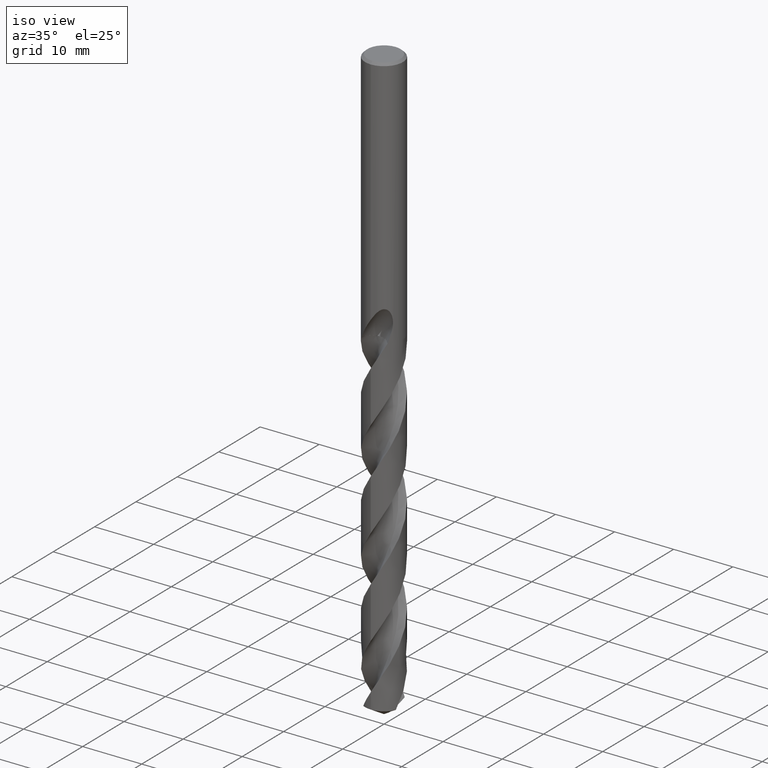
[diagram: clean part render]
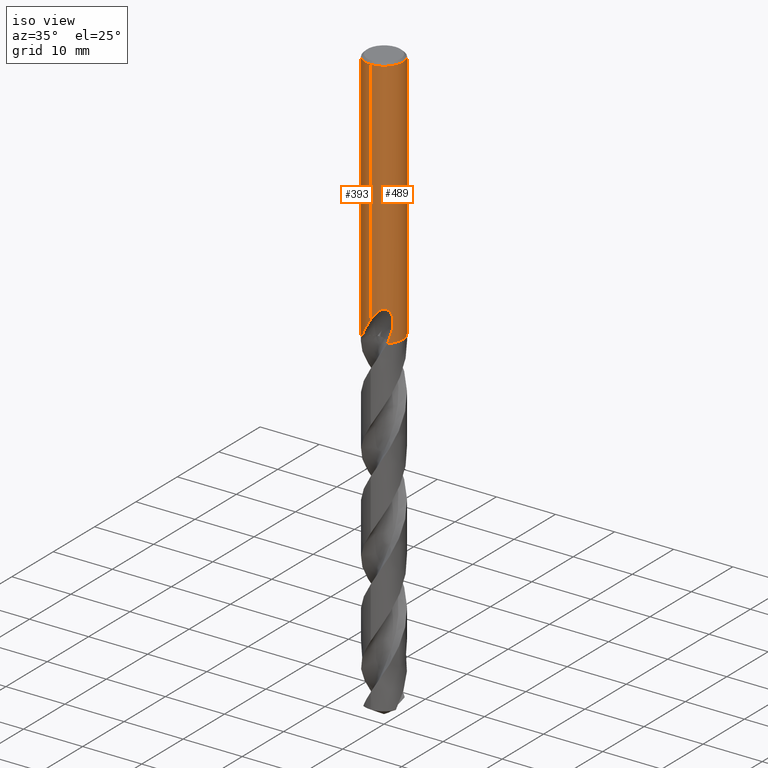
[diagram: same view with one multi-face feature highlighted, each face labeled with its STEP entity id]
A machine part, iso view. The highlighted faces form ONE feature: a constant-radius fillet chain: 2 tangent blend faces with common blend radius 3.2 mm. The faces share edges in the B-rep.
Their STEP definitions:
[1] entity #393 (Cylinder):
#273=EDGE_CURVE('',#585,#457,#772,.T.);
#289=EDGE_CURVE('',#601,#523,#790,.T.);
#305=VERTEX_POINT('',#807);
#323=EDGE_CURVE('',#395,#437,#826,.T.);
#343=EDGE_CURVE('',#729,#543,#848,.T.);
#347=EDGE_CURVE('',#305,#359,#852,.T.);
#355=VERTEX_POINT('',#860);
#359=VERTEX_POINT('',#865);
#367=EDGE_CURVE('',#355,#305,#873,.T.);
#381=EDGE_CURVE('',#543,#585,#888,.T.);
#385=VERTEX_POINT('',#892);
#393=ADVANCED_FACE('',(#900),#901,.T.);
#395=VERTEX_POINT('',#903);
#437=VERTEX_POINT('',#950);
#457=VERTEX_POINT('',#972);
#471=EDGE_CURVE('',#705,#385,#989,.T.);
#487=VERTEX_POINT('',#1007);
#515=VERTEX_POINT('',#1037);
#523=VERTEX_POINT('',#1046);
#543=VERTEX_POINT('',#1066);
#585=VERTEX_POINT('',#1113);
#589=EDGE_CURVE('',#457,#515,#1117,.T.);
#601=VERTEX_POINT('',#1131);
#653=EDGE_CURVE('',#523,#487,#1187,.T.);
#665=EDGE_CURVE('',#705,#601,#1200,.T.);
#673=EDGE_CURVE('',#437,#385,#1209,.T.);
#697=EDGE_CURVE('',#359,#729,#1234,.T.);
#705=VERTEX_POINT('',#1242);
#711=EDGE_CURVE('',#487,#355,#1249,.T.);
#715=EDGE_CURVE('',#515,#395,#1254,.T.);
#729=VERTEX_POINT('',#1271);
#772=ELLIPSE('',#1308,3.56777098253715,3.2);
#790=LINE('',#1511,#1512);
#807=CARTESIAN_POINT('',(-0.486378944383044,3.16282081731812,-28.6432837483006));
#826=B_SPLINE_CURVE_WITH_KNOTS('',3,(#1745,#1746,#1747,#1748,#1749,#1750,#1751,#1752,#1753,#1754,#1755,#1756,#1757,#1758,#1759,#1760,#1761,#1762,#1763,#1764,#1765,#1766,#1767,#1768,#1769,#1770,#1771,#1772,#1773,#1774),.UNSPECIFIED.,.F.,.F.,(4,2,2,2,2,2,2,2,2,2,2,2,2,2,4),(0.0,1.56418280154036,2.41991608824989,3.19553964258165,4.09694743130368,5.17947246629449,6.1154647527767,6.5404668370131,6.85113662166403,7.14515070491405,7.51816954064484,8.06394900138039,8.83981202929728,9.34722141628257,9.88046329420346),.UNSPECIFIED.);
#848=B_SPLINE_CURVE_WITH_KNOTS('',3,(#1804,#1805,#1806,#1807,#1808,#1809,#1810,#1811,#1812,#1813,#1814,#1815,#1816,#1817),.UNSPECIFIED.,.F.,.F.,(4,2,2,2,2,2,4),(3.15490234702631,3.60486301259346,4.05482367816061,4.50478434372776,4.95236003494116,5.39993572615456,5.85379826843041),.UNSPECIFIED.);
#852=B_SPLINE_CURVE_WITH_KNOTS('',3,(#1822,#1823,#1824,#1825,#1826,#1827,#1828,#1829,#1830,#1831,#1832,#1833,#1834,#1835,#1836,#1837,#1838,#1839,#1840,#1841,#1842,#1843,#1844,#1845,#1846,#1847,#1848),.UNSPECIFIED.,.F.,.F.,(4,2,3,2,2,2,2,2,2,2,2,2,4),(-0.54388468610139,-0.271942343050695,0.0,0.271942343050695,0.54388468610139,0.81720496749717,1.09052524889295,1.36147775566195,1.63243026243095,1.90408008348534,2.17572990453973,2.44737972559411,2.7190295466485),.UNSPECIFIED.);
#860=CARTESIAN_POINT('',(1.69943373378212E-015,3.2,-29.0232688117743));
#865=CARTESIAN_POINT('',(-0.562333990228013,3.15020324478187,-28.3171221986971));
#873=B_SPLINE_CURVE_WITH_KNOTS('',3,(#2069,#2070,#2071,#2072,#2073,#2074,#2075,#2076,#2077,#2078,#2079,#2080,#2081,#2082,#2083,#2084,#2085,#2086,#2087,#2088,#2089,#2090,#2091,#2092,#2093,#2094,#2095),.UNSPECIFIED.,.F.,.F.,(4,2,3,2,2,2,2,2,2,2,2,2,4),(-0.54388468610139,-0.271942343050695,0.0,0.271942343050695,0.54388468610139,0.81720496749717,1.09052524889295,1.36147775566195,1.63243026243095,1.90408008348534,2.17572990453973,2.44737972559411,2.7190295466485),.UNSPECIFIED.);
#888=LINE('',#2115,#2116);
#892=CARTESIAN_POINT('',(-2.22556714517572,2.29931530728484,-42.8384));
#900=FACE_OUTER_BOUND('',#2470,.T.);
#901=CYLINDRICAL_SURFACE('',#2471,3.2);
#903=CARTESIAN_POINT('',(-1.01116502324028E-012,3.2,-39.441868292358));
#950=CARTESIAN_POINT('',(-2.60365492250826,1.86037121147864,-41.0911432665525));
#972=CARTESIAN_POINT('',(-1.337052752443,2.90728222523796,-30.3720803908795));
#989=CIRCLE('',#4900,3.2);
#1007=CARTESIAN_POINT('',(0.0,3.2,-0.399999999999999));
#1037=CARTESIAN_POINT('',(-2.17418747032393E-016,3.2,-31.0310253601033));
#1046=CARTESIAN_POINT('',(3.91874033223161E-016,-3.2,-0.399999999999999));
#1066=CARTESIAN_POINT('',(2.35719168458961E-016,3.2,-29.5000801551881));
#1113=CARTESIAN_POINT('',(-3.91874033223161E-016,3.2,-29.7128911336578));
#1117=B_SPLINE_CURVE_WITH_KNOTS('',3,(#6080,#6081,#6082,#6083,#6084,#6085,#6086,#6087,#6088,#6089,#6090,#6091,#6092,#6093,#6094,#6095),.UNSPECIFIED.,.F.,.F.,(4,2,2,2,2,2,2,4),(5.6405124636378,6.26831976122806,6.58175806023628,6.8951963592445,7.20863465825273,7.52207295726095,7.83430868219076,8.14654440712057),.UNSPECIFIED.);
#1131=CARTESIAN_POINT('',(1.01094297863535E-012,-3.2,-39.441868292358));
#1187=CIRCLE('',#6965,3.2);
#1200=B_SPLINE_CURVE_WITH_KNOTS('',3,(#6980,#6981,#6982,#6983,#6984,#6985,#6986,#6987,#6988,#6989,#6990,#6991,#6992,#6993,#6994,#6995,#6996,#6997,#6998,#6999,#7000,#7001,#7002,#7003,#7004,#7005,#7006,#7007,#7008,#7009),.UNSPECIFIED.,.F.,.F.,(4,2,2,2,2,2,2,2,2,2,2,2,2,2,4),(0.0,1.56418280154034,2.41991608824972,3.19553964258123,4.09694743130311,5.17947246629371,6.11546475277564,6.54046683701201,6.85113662166295,7.14515070491289,7.51816954064334,8.06394900137794,8.83981202929214,9.3472214162755,9.8804632941944),.UNSPECIFIED.);
#1209=B_SPLINE_CURVE_WITH_KNOTS('',3,(#7027,#7028,#7029,#7030),.UNSPECIFIED.,.F.,.F.,(4,4),(0.0,1.8338423841855),.UNSPECIFIED.);
#1234=CIRCLE('',#7085,3.2);
#1242=CARTESIAN_POINT('',(-2.03671613018592,-2.46815465581889,-42.8384));
#1249=LINE('',#7442,#7443);
#1254=LINE('',#7449,#7450);
#1271=CARTESIAN_POINT('',(-1.0350734039088,3.02797342269061,-28.3171221986971));
#1308=AXIS2_PLACEMENT_3D('',#8769,#8770,#8771);
#1511=CARTESIAN_POINT('',(3.91874033223161E-016,-3.2,-40.4192));
#1512=VECTOR('',#8788,1.0);
#1745=CARTESIAN_POINT('',(2.03671613018592,2.46815465581889,-42.8384));
#1746=CARTESIAN_POINT('',(1.82581661384713,2.64218850161658,-42.3944567644696));
#1747=CARTESIAN_POINT('',(1.5835269579741,2.79679136483305,-41.9803759783774));
#1748=CARTESIAN_POINT('',(1.16104787457341,2.9864334383255,-41.2884078100392));
#1749=CARTESIAN_POINT('',(1.00883966628266,3.04104902737132,-41.0446359797915));
#1750=CARTESIAN_POINT('',(0.714103545445315,3.12269109050714,-40.572621990653));
#1751=CARTESIAN_POINT('',(0.572880380716744,3.15153515583209,-40.346562177208));
#1752=CARTESIAN_POINT('',(0.267137484816932,3.19314021795708,-39.8592720745474));
#1753=CARTESIAN_POINT('',(0.100050815028763,3.20287680139077,-39.5942095500522));
#1754=CARTESIAN_POINT('',(-0.270966577153541,3.19493028925823,-39.0272872820361));
#1755=CARTESIAN_POINT('',(-0.49096978250499,3.17070125895364,-38.7047037006814));
#1756=CARTESIAN_POINT('',(-0.914769090110058,3.07308725010378,-38.1735828581562));
#1757=CARTESIAN_POINT('',(-1.1488497805987,2.99891213767497,-37.914887150144));
#1758=CARTESIAN_POINT('',(-1.50335845295191,2.82754879606002,-37.6723379090386));
#1759=CARTESIAN_POINT('',(-1.62085888987216,2.76277077350274,-37.6123220257498));
#1760=CARTESIAN_POINT('',(-1.82675531289684,2.62939112272618,-37.5662375608484));
#1761=CARTESIAN_POINT('',(-1.91120898901255,2.56864637370729,-37.5653948794213));
#1762=CARTESIAN_POINT('',(-2.06851177912172,2.44352413998754,-37.6058014583781));
#1763=CARTESIAN_POINT('',(-2.13730948416053,2.38309133918869,-37.6436728175946));
#1764=CARTESIAN_POINT('',(-2.27731724641441,2.25065356921342,-37.7621558549145));
#1765=CARTESIAN_POINT('',(-2.34209168653674,2.18201971292754,-37.8496327558872));
#1766=CARTESIAN_POINT('',(-2.47477096029701,2.0321528860174,-38.0891683072754));
#1767=CARTESIAN_POINT('',(-2.53818650786079,1.95054151028178,-38.2668342002508));
#1768=CARTESIAN_POINT('',(-2.65742290403806,1.78668839990132,-38.7639017007465));
#1769=CARTESIAN_POINT('',(-2.70051991551167,1.71691047735878,-39.1178999363961));
#1770=CARTESIAN_POINT('',(-2.72180612652888,1.68286169989453,-39.7729028789558));
#1771=CARTESIAN_POINT('',(-2.71677604343853,1.69120190751864,-40.03365528941));
#1772=CARTESIAN_POINT('',(-2.68132888276003,1.74688853468976,-40.5628476876032));
#1773=CARTESIAN_POINT('',(-2.64969206765231,1.79594060814907,-40.8292960951443));
#1774=CARTESIAN_POINT('',(-2.60365492250827,1.86037121147863,-41.0911432665525));
#1804=CARTESIAN_POINT('',(-0.944156597312266,3.05754285656828,-27.871402718095));
#1805=CARTESIAN_POINT('',(-1.00487292744193,3.03879392186937,-28.0171696183196));
#1806=CARTESIAN_POINT('',(-1.03510901790186,3.02796124827552,-28.1763149722104));
#1807=CARTESIAN_POINT('',(-1.03510901790186,3.02796124827552,-28.4762887492552));
#1808=CARTESIAN_POINT('',(-1.00487292744193,3.03879392186937,-28.635434103146));
#1809=CARTESIAN_POINT('',(-0.883440267182723,3.07629179126738,-28.9269679035952));
#1810=CARTESIAN_POINT('',(-0.792294199448972,3.1022277763014,-29.0594707094703));
#1811=CARTESIAN_POINT('',(-0.582950320380782,3.14826843080816,-29.2681890464186));
#1812=CARTESIAN_POINT('',(-0.450624149527641,3.17148039913407,-29.3588422597949));
#1813=CARTESIAN_POINT('',(-0.159722990814595,3.19934971697137,-29.4794595067935));
#1814=CARTESIAN_POINT('',(-0.0010745859861889,3.20347577912127,-29.5093686300866));
#1815=CARTESIAN_POINT('',(0.299083464663941,3.18958257348587,-29.5093686300866));
#1816=CARTESIAN_POINT('',(0.45871133732696,3.17042608954763,-29.4787015230139));
#1817=CARTESIAN_POINT('',(0.604423939914955,3.14239903590516,-29.4177621667171));
#1822=CARTESIAN_POINT('',(0.665525962132838,3.13002798609328,-27.8140002954229));
#1823=CARTESIAN_POINT('',(0.72882813666588,3.11656828515821,-27.8774717923461));
#1824=CARTESIAN_POINT('',(0.783912848975626,3.10272755923718,-27.957884452502));
#1825=CARTESIAN_POINT('',(0.857210819049536,3.08328190618137,-28.1346269994917));
#1826=CARTESIAN_POINT('',(0.875400981188567,3.07793325498363,-28.2309945649032));
#1827=CARTESIAN_POINT('',(0.875400981188567,3.07793325498363,-28.3216420125868));
#1828=CARTESIAN_POINT('',(0.875400981188567,3.07793325498363,-28.4122894602703));
#1829=CARTESIAN_POINT('',(0.857210819049536,3.08328190618137,-28.5086570256819));
#1830=CARTESIAN_POINT('',(0.783912848975626,3.10272755923718,-28.6853995726716));
#1831=CARTESIAN_POINT('',(0.72882813666588,3.11656828515821,-28.7658122328275));
#1832=CARTESIAN_POINT('',(0.601903033970043,3.14355588765435,-28.8930768382642));
#1833=CARTESIAN_POINT('',(0.521316822684333,3.15851583873541,-28.948471386565));
#1834=CARTESIAN_POINT('',(0.344146204704438,3.18269648606677,-29.0222031713691));
#1835=CARTESIAN_POINT('',(0.247524093898666,3.19171306115417,-29.0405166027747));
#1836=CARTESIAN_POINT('',(0.0663170015454652,3.20058733774285,-29.0405166027747));
#1837=CARTESIAN_POINT('',(-0.0299393574811104,3.20108484586551,-29.0224862858983));
#1838=CARTESIAN_POINT('',(-0.2069118676806,3.19453095694342,-28.9492285009552));
#1839=CARTESIAN_POINT('',(-0.287639476259431,3.18769098448322,-28.8940099496258));
#1840=CARTESIAN_POINT('',(-0.415251129154565,3.1735938561794,-28.7666146246942));
#1841=CARTESIAN_POINT('',(-0.470645587722945,3.16541942552153,-28.6858378763431));
#1842=CARTESIAN_POINT('',(-0.544199232908571,3.15360660623665,-28.5086363724315));
#1843=CARTESIAN_POINT('',(-0.562348199187247,3.15020070834715,-28.4121919529382));
#1844=CARTESIAN_POINT('',(-0.562348199187247,3.15020070834715,-28.2310920722353));
#1845=CARTESIAN_POINT('',(-0.544199232908571,3.15360660623665,-28.1346476527421));
#1846=CARTESIAN_POINT('',(-0.470645587722945,3.16541942552153,-27.9574461488305));
#1847=CARTESIAN_POINT('',(-0.415251129154566,3.1735938561794,-27.8766694004794));
#1848=CARTESIAN_POINT('',(-0.351363303953972,3.18065147864939,-27.8128898782652));
#2069=CARTESIAN_POINT('',(0.665525962132838,3.13002798609328,-27.8140002954229));
#2070=CARTESIAN_POINT('',(0.72882813666588,3.11656828515821,-27.8774717923461));
#2071=CARTESIAN_POINT('',(0.783912848975626,3.10272755923718,-27.957884452502));
#2072=CARTESIAN_POINT('',(0.857210819049536,3.08328190618137,-28.1346269994917));
#2073=CARTESIAN_POINT('',(0.875400981188567,3.07793325498363,-28.2309945649032));
#2074=CARTESIAN_POINT('',(0.875400981188567,3.07793325498363,-28.3216420125868));
#2075=CARTESIAN_POINT('',(0.875400981188567,3.07793325498363,-28.4122894602703));
#2076=CARTESIAN_POINT('',(0.857210819049536,3.08328190618137,-28.5086570256819));
#2077=CARTESIAN_POINT('',(0.783912848975626,3.10272755923718,-28.6853995726716));
#2078=CARTESIAN_POINT('',(0.72882813666588,3.11656828515821,-28.7658122328275));
#2079=CARTESIAN_POINT('',(0.601903033970043,3.14355588765435,-28.8930768382642));
#2080=CARTESIAN_POINT('',(0.521316822684333,3.15851583873541,-28.948471386565));
#2081=CARTESIAN_POINT('',(0.344146204704438,3.18269648606677,-29.0222031713691));
#2082=CARTESIAN_POINT('',(0.247524093898666,3.19171306115417,-29.0405166027747));
#2083=CARTESIAN_POINT('',(0.0663170015454652,3.20058733774285,-29.0405166027747));
#2084=CARTESIAN_POINT('',(-0.0299393574811104,3.20108484586551,-29.0224862858983));
#2085=CARTESIAN_POINT('',(-0.2069118676806,3.19453095694342,-28.9492285009552));
#2086=CARTESIAN_POINT('',(-0.287639476259431,3.18769098448322,-28.8940099496258));
#2087=CARTESIAN_POINT('',(-0.415251129154565,3.1735938561794,-28.7666146246942));
#2088=CARTESIAN_POINT('',(-0.470645587722945,3.16541942552153,-28.6858378763431));
#2089=CARTESIAN_POINT('',(-0.544199232908571,3.15360660623665,-28.5086363724315));
#2090=CARTESIAN_POINT('',(-0.562348199187247,3.15020070834715,-28.4121919529382));
#2091=CARTESIAN_POINT('',(-0.562348199187247,3.15020070834715,-28.2310920722353));
#2092=CARTESIAN_POINT('',(-0.544199232908571,3.15360660623665,-28.1346476527421));
#2093=CARTESIAN_POINT('',(-0.470645587722945,3.16541942552153,-27.9574461488305));
#2094=CARTESIAN_POINT('',(-0.415251129154566,3.1735938561794,-27.8766694004794));
#2095=CARTESIAN_POINT('',(-0.351363303953972,3.18065147864939,-27.8128898782652));
#2115=CARTESIAN_POINT('',(-3.91874033223161E-016,3.2,-40.4192));
#2116=VECTOR('',#8868,1.0);
#2470=EDGE_LOOP('',(#8871,#8872,#8873,#8874,#8875,#8876,#8877,#8878,#8879,#8880,#8881,#8882,#8883,#8884,#8885));
#2471=AXIS2_PLACEMENT_3D('',#8886,#8887,#8888);
#4900=AXIS2_PLACEMENT_3D('',#9026,#9027,#9028);
#6080=CARTESIAN_POINT('',(-1.53084467152366,2.81007376979104,-30.0311732056276));
#6081=CARTESIAN_POINT('',(-1.4472993533045,2.85558668953798,-30.2308750669082));
#6082=CARTESIAN_POINT('',(-1.32295830470452,2.91774849151837,-30.4111550366191));
#6083=CARTESIAN_POINT('',(-1.10945251519198,3.00249337435313,-30.6248644751923));
#6084=CARTESIAN_POINT('',(-1.02901389870799,3.03143439127644,-30.6919938671183));
#6085=CARTESIAN_POINT('',(-0.853149937813416,3.0855468325374,-30.8109917867432));
#6086=CARTESIAN_POINT('',(-0.757718817592545,3.110678948132,-30.8628696500569));
#6087=CARTESIAN_POINT('',(-0.557523726123816,3.15271765843848,-30.9467301740751));
#6088=CARTESIAN_POINT('',(-0.452569005844273,3.16963517046232,-30.9787790338088));
#6089=CARTESIAN_POINT('',(-0.240228092035581,3.1927568467879,-31.0210576850125));
#6090=CARTESIAN_POINT('',(-0.132837498528975,3.19894828825118,-31.0312723335086));
#6091=CARTESIAN_POINT('',(0.0757123175560931,3.20079677498267,-31.0312723335086));
#6092=CARTESIAN_POINT('',(0.182801930849427,3.19654560234923,-31.0211344513032));
#6093=CARTESIAN_POINT('',(0.394727874450899,3.17734326740601,-30.9790638291892));
#6094=CARTESIAN_POINT('',(0.499568142291806,3.16240500525547,-30.9471450383564));
#6095=CARTESIAN_POINT('',(0.599615660437366,3.14332006956948,-30.9053359873184));
#6965=AXIS2_PLACEMENT_3D('',#9238,#9239,#9240);
#6980=CARTESIAN_POINT('',(-2.03671613018592,-2.46815465581889,-42.8384));
#6981=CARTESIAN_POINT('',(-1.82581661384713,-2.64218850161658,-42.3944567644696));
#6982=CARTESIAN_POINT('',(-1.58352695797411,-2.79679136483305,-41.9803759783774));
#6983=CARTESIAN_POINT('',(-1.16104787457344,-2.98643343832549,-41.2884078100393));
#6984=CARTESIAN_POINT('',(-1.00883966628271,-3.04104902737131,-41.0446359797916));
#6985=CARTESIAN_POINT('',(-0.714103545445292,-3.12269109050714,-40.572621990653));
#6986=CARTESIAN_POINT('',(-0.572880380716695,-3.15153515583209,-40.3465621772079));
#6987=CARTESIAN_POINT('',(-0.267137484816969,-3.19314021795707,-39.8592720745475));
#6988=CARTESIAN_POINT('',(-0.100050815028779,-3.20287680139077,-39.5942095500522));
#6989=CARTESIAN_POINT('',(0.270966577153546,-3.19493028925823,-39.0272872820361));
#6990=CARTESIAN_POINT('',(0.490969782504991,-3.17070125895364,-38.7047037006814));
#6991=CARTESIAN_POINT('',(0.914769090110028,-3.07308725010379,-38.1735828581562));
#6992=CARTESIAN_POINT('',(1.14884978059869,-2.99891213767498,-37.914887150144));
#6993=CARTESIAN_POINT('',(1.50335845295193,-2.82754879606001,-37.6723379090386));
#6994=CARTESIAN_POINT('',(1.62085888987217,-2.76277077350273,-37.6123220257498));
#6995=CARTESIAN_POINT('',(1.82675531289684,-2.62939112272618,-37.5662375608484));
#6996=CARTESIAN_POINT('',(1.91120898901255,-2.56864637370729,-37.5653948794213));
#6997=CARTESIAN_POINT('',(2.06851177912169,-2.44352413998756,-37.6058014583781));
#6998=CARTESIAN_POINT('',(2.13730948416048,-2.38309133918874,-37.6436728175945));
#6999=CARTESIAN_POINT('',(2.27731724641441,-2.25065356921342,-37.7621558549145));
#7000=CARTESIAN_POINT('',(2.34209168653676,-2.18201971292753,-37.8496327558872));
#7001=CARTESIAN_POINT('',(2.47477096029692,-2.03215288601751,-38.0891683072752));
#7002=CARTESIAN_POINT('',(2.53818650786073,-1.95054151028187,-38.2668342002505));
#7003=CARTESIAN_POINT('',(2.65742290403802,-1.78668839990137,-38.7639017007463));
#7004=CARTESIAN_POINT('',(2.70051991551166,-1.71691047735879,-39.1178999363959));
#7005=CARTESIAN_POINT('',(2.72180612652888,-1.68286169989453,-39.7729028789558));
#7006=CARTESIAN_POINT('',(2.71677604343853,-1.69120190751865,-40.03365528941));
#7007=CARTESIAN_POINT('',(2.68132888276003,-1.74688853468976,-40.5628476876032));
#7008=CARTESIAN_POINT('',(2.64969206765231,-1.79594060814907,-40.8292960951443));
#7009=CARTESIAN_POINT('',(2.60365492250827,-1.86037121147864,-41.0911432665525));
#7027=CARTESIAN_POINT('',(-2.60365492256088,1.86037121140499,-41.0911432665814));
#7028=CARTESIAN_POINT('',(-2.5007846950922,2.0043417117502,-41.6762538726507));
#7029=CARTESIAN_POINT('',(-2.37686297392552,2.152872135876,-42.2648123883795));
#7030=CARTESIAN_POINT('',(-2.22556714517572,2.29931530728484,-42.8384));
#7085=AXIS2_PLACEMENT_3D('',#9278,#9279,#9280);
#7442=CARTESIAN_POINT('',(-3.91874033223161E-016,3.2,-40.4192));
#7443=VECTOR('',#9290,1.0);
#7449=CARTESIAN_POINT('',(-3.91874033223161E-016,3.2,-40.4192));
#7450=VECTOR('',#9299,1.0);
#8769=CARTESIAN_POINT('',(0.0,0.0,-29.7128911336578));
#8770=DIRECTION('',(-0.442195774284071,0.0,0.896918556617774));
#8771=DIRECTION('',(0.896918556617774,-0.0,0.442195774284071));
#8788=DIRECTION('',(-0.0,-0.0,1.0));
#8868=DIRECTION('',(0.0,0.0,-1.0));
#8871=ORIENTED_EDGE('',*,*,#711,.T.);
#8872=ORIENTED_EDGE('',*,*,#367,.T.);
#8873=ORIENTED_EDGE('',*,*,#347,.T.);
#8874=ORIENTED_EDGE('',*,*,#697,.T.);
#8875=ORIENTED_EDGE('',*,*,#343,.T.);
#8876=ORIENTED_EDGE('',*,*,#381,.T.);
#8877=ORIENTED_EDGE('',*,*,#273,.T.);
#8878=ORIENTED_EDGE('',*,*,#589,.T.);
#8879=ORIENTED_EDGE('',*,*,#715,.T.);
#8880=ORIENTED_EDGE('',*,*,#323,.T.);
#8881=ORIENTED_EDGE('',*,*,#673,.T.);
#8882=ORIENTED_EDGE('',*,*,#471,.F.);
#8883=ORIENTED_EDGE('',*,*,#665,.T.);
#8884=ORIENTED_EDGE('',*,*,#289,.T.);
#8885=ORIENTED_EDGE('',*,*,#653,.T.);
#8886=CARTESIAN_POINT('',(0.0,0.0,-40.4192));
#8887=DIRECTION('',(-0.0,-0.0,1.0));
#8888=DIRECTION('',(0.0,1.0,0.0));
#9026=CARTESIAN_POINT('',(0.0,0.0,-42.8384));
#9027=DIRECTION('',(0.0,0.0,-1.0));
#9028=DIRECTION('',(0.0,1.0,0.0));
#9238=CARTESIAN_POINT('',(0.0,0.0,-0.399999999999999));
#9239=DIRECTION('',(0.0,0.0,-1.0));
#9240=DIRECTION('',(0.0,1.0,0.0));
#9278=CARTESIAN_POINT('',(0.0,0.0,-28.3171221986971));
#9279=DIRECTION('',(0.0,-0.0,1.0));
#9280=DIRECTION('',(0.0,1.0,0.0));
#9290=DIRECTION('',(0.0,0.0,-1.0));
#9299=DIRECTION('',(0.0,0.0,-1.0));
[2] entity #489 (Cylinder):
#289=EDGE_CURVE('',#601,#523,#790,.T.);
#299=VERTEX_POINT('',#801);
#333=VERTEX_POINT('',#838);
#351=EDGE_CURVE('',#613,#747,#856,.T.);
#355=VERTEX_POINT('',#860);
#373=EDGE_CURVE('',#615,#413,#879,.T.);
#395=VERTEX_POINT('',#903);
#411=VERTEX_POINT('',#921);
#413=VERTEX_POINT('',#923);
#455=EDGE_CURVE('',#735,#645,#970,.T.);
#463=EDGE_CURVE('',#413,#299,#979,.T.);
#481=EDGE_CURVE('',#333,#735,#1001,.T.);
#487=VERTEX_POINT('',#1007);
#489=ADVANCED_FACE('',(#1009),#1010,.T.);
#515=VERTEX_POINT('',#1037);
#523=VERTEX_POINT('',#1046);
#527=EDGE_CURVE('',#411,#747,#1050,.T.);
#531=EDGE_CURVE('',#487,#523,#1054,.T.);
#539=EDGE_CURVE('',#411,#395,#1062,.T.);
#547=EDGE_CURVE('',#515,#333,#1070,.T.);
#601=VERTEX_POINT('',#1131);
#613=VERTEX_POINT('',#1144);
#615=VERTEX_POINT('',#1146);
#621=EDGE_CURVE('',#601,#613,#1154,.T.);
#645=VERTEX_POINT('',#1179);
#669=EDGE_CURVE('',#645,#615,#1205,.T.);
#711=EDGE_CURVE('',#487,#355,#1249,.T.);
#715=EDGE_CURVE('',#515,#395,#1254,.T.);
#735=VERTEX_POINT('',#1277);
#737=EDGE_CURVE('',#299,#355,#1279,.T.);
#747=VERTEX_POINT('',#1290);
#790=LINE('',#1511,#1512);
#801=CARTESIAN_POINT('',(0.799431726384364,3.09853334899757,-28.000000276873));
#838=CARTESIAN_POINT('',(0.29010312703583,3.18682289681809,-30.9998328990228));
#856=B_SPLINE_CURVE_WITH_KNOTS('',3,(#1855,#1856,#1857,#1858),.UNSPECIFIED.,.F.,.F.,(4,4),(0.0,1.83384238418566),.UNSPECIFIED.);
#860=CARTESIAN_POINT('',(1.69943373378212E-015,3.2,-29.0232688117743));
#879=LINE('',#2104,#2105);
#903=CARTESIAN_POINT('',(-1.01116502324028E-012,3.2,-39.441868292358));
#921=CARTESIAN_POINT('',(2.03671613018592,2.46815465581889,-42.8384));
#923=CARTESIAN_POINT('',(1.33721006514658,2.9072098723124,-28.5150484364821));
#970=LINE('',#3757,#3758);
#979=B_SPLINE_CURVE_WITH_KNOTS('',3,(#4878,#4879,#4880,#4881,#4882,#4883,#4884,#4885),.UNSPECIFIED.,.F.,.F.,(4,2,2,4),(0.627197202368356,1.25439440473671,1.56663010846407,1.87886581219143),.UNSPECIFIED.);
#1001=ELLIPSE('',#4915,9.75358263478328,3.2);
#1007=CARTESIAN_POINT('',(0.0,3.2,-0.399999999999999));
#1009=FACE_OUTER_BOUND('',#4923,.T.);
#1010=CYLINDRICAL_SURFACE('',#4924,3.2);
#1037=CARTESIAN_POINT('',(-2.17418747032393E-016,3.2,-31.0310253601033));
#1046=CARTESIAN_POINT('',(3.91874033223161E-016,-3.2,-0.399999999999999));
#1050=CIRCLE('',#5308,3.2);
#1054=CIRCLE('',#5493,3.2);
#1062=B_SPLINE_CURVE_WITH_KNOTS('',3,(#5503,#5504,#5505,#5506,#5507,#5508,#5509,#5510,#5511,#5512,#5513,#5514,#5515,#5516,#5517,#5518,#5519,#5520,#5521,#5522,#5523,#5524,#5525,#5526,#5527,#5528,#5529,#5530,#5531,#5532),.UNSPECIFIED.,.F.,.F.,(4,2,2,2,2,2,2,2,2,2,2,2,2,2,4),(0.0,1.56418280154036,2.41991608824989,3.19553964258165,4.09694743130368,5.17947246629449,6.1154647527767,6.5404668370131,6.85113662166403,7.14515070491405,7.51816954064484,8.06394900138039,8.83981202929728,9.34722141628257,9.88046329420346),.UNSPECIFIED.);
#1070=B_SPLINE_CURVE_WITH_KNOTS('',3,(#5549,#5550,#5551,#5552,#5553,#5554,#5555,#5556,#5557,#5558,#5559,#5560,#5561,#5562,#5563,#5564),.UNSPECIFIED.,.F.,.F.,(4,2,2,2,2,2,2,4),(5.6405124636378,6.26831976122806,6.58175806023628,6.8951963592445,7.20863465825273,7.52207295726095,7.83430868219076,8.14654440712057),.UNSPECIFIED.);
#1131=CARTESIAN_POINT('',(1.01094297863535E-012,-3.2,-39.441868292358));
#1144=CARTESIAN_POINT('',(2.60365492250826,-1.86037121147864,-41.0911432665525));
#1146=CARTESIAN_POINT('',(1.33721006514658,2.9072098723124,-30.2901657003257));
#1154=B_SPLINE_CURVE_WITH_KNOTS('',3,(#6355,#6356,#6357,#6358,#6359,#6360,#6361,#6362,#6363,#6364,#6365,#6366,#6367,#6368,#6369,#6370,#6371,#6372,#6373,#6374,#6375,#6376,#6377,#6378,#6379,#6380,#6381,#6382,#6383,#6384),.UNSPECIFIED.,.F.,.F.,(4,2,2,2,2,2,2,2,2,2,2,2,2,2,4),(0.0,1.56418280154034,2.41991608824972,3.19553964258123,4.09694743130311,5.17947246629371,6.11546475277564,6.54046683701201,6.85113662166295,7.14515070491289,7.51816954064334,8.06394900137794,8.83981202929214,9.3472214162755,9.8804632941944),.UNSPECIFIED.);
#1179=CARTESIAN_POINT('',(0.873560781758956,3.07845603518593,-30.7587351791531));
#1205=B_SPLINE_CURVE_WITH_KNOTS('',3,(#7015,#7016,#7017,#7018,#7019,#7020,#7021,#7022),.UNSPECIFIED.,.F.,.F.,(4,2,2,4),(8.14654193792937,8.45877763139166,8.77101332485395,9.39821050498694),.UNSPECIFIED.);
#1249=LINE('',#7442,#7443);
#1254=LINE('',#7449,#7450);
#1277=CARTESIAN_POINT('',(0.873560781758957,3.07845603518593,-29.3198931596091));
#1279=B_SPLINE_CURVE_WITH_KNOTS('',3,(#8705,#8706,#8707,#8708,#8709,#8710,#8711,#8712,#8713,#8714,#8715,#8716,#8717,#8718,#8719,#8720,#8721,#8722,#8723,#8724,#8725,#8726,#8727,#8728,#8729,#8730,#8731),.UNSPECIFIED.,.F.,.F.,(4,2,3,2,2,2,2,2,2,2,2,2,4),(-0.54388468610139,-0.271942343050695,0.0,0.271942343050695,0.54388468610139,0.81720496749717,1.09052524889295,1.36147775566195,1.63243026243095,1.90408008348534,2.17572990453973,2.44737972559411,2.7190295466485),.UNSPECIFIED.);
#1290=CARTESIAN_POINT('',(2.22556714517572,-2.29931530728484,-42.8384));
#1511=CARTESIAN_POINT('',(3.91874033223161E-016,-3.2,-40.4192));
#1512=VECTOR('',#8788,1.0);
#1855=CARTESIAN_POINT('',(2.60365492256088,-1.860371211405,-41.0911432665814));
#1856=CARTESIAN_POINT('',(2.50078469509219,-2.00434171175021,-41.6762538726508));
#1857=CARTESIAN_POINT('',(2.37686297392551,-2.15287213587601,-42.2648123883796));
#1858=CARTESIAN_POINT('',(2.22556714517572,-2.29931530728484,-42.8384));
#2104=CARTESIAN_POINT('',(1.33721006514658,2.9072098723124,-29.4026070684039));
#2105=VECTOR('',#8859,1.0);
#3757=CARTESIAN_POINT('',(0.873560781758957,3.07845603518593,-30.0393141693811));
#3758=VECTOR('',#8968,1.0);
#4878=CARTESIAN_POINT('',(1.47405902727093,2.84027287141941,-28.7738955903858));
#4879=CARTESIAN_POINT('',(1.39038370746804,2.88369902557363,-28.5739374751884));
#4880=CARTESIAN_POINT('',(1.26571246276086,2.94300518335603,-28.3932715922059));
#4881=CARTESIAN_POINT('',(1.05157905677967,3.02323631843203,-28.1793342104739));
#4882=CARTESIAN_POINT('',(0.971066114290828,3.0504768041761,-28.1122733808947));
#4883=CARTESIAN_POINT('',(0.795110667281782,3.10099615571195,-27.9934546301155));
#4884=CARTESIAN_POINT('',(0.699662873714278,3.12423520192813,-27.9416876144048));
#4885=CARTESIAN_POINT('',(0.599615360671765,3.14332012675236,-27.8998785659955));
#4915=AXIS2_PLACEMENT_3D('',#9047,#9048,#9049);
#4923=EDGE_LOOP('',(#9051,#9052,#9053,#9054,#9055,#9056,#9057,#9058,#9059,#9060,#9061,#9062,#9063,#9064,#9065));
#4924=AXIS2_PLACEMENT_3D('',#9066,#9067,#9068);
#5308=AXIS2_PLACEMENT_3D('',#9094,#9095,#9096);
#5493=AXIS2_PLACEMENT_3D('',#9097,#9098,#9099);
#5503=CARTESIAN_POINT('',(2.03671613018592,2.46815465581889,-42.8384));
#5504=CARTESIAN_POINT('',(1.82581661384713,2.64218850161658,-42.3944567644696));
#5505=CARTESIAN_POINT('',(1.5835269579741,2.79679136483305,-41.9803759783774));
#5506=CARTESIAN_POINT('',(1.16104787457341,2.9864334383255,-41.2884078100392));
#5507=CARTESIAN_POINT('',(1.00883966628266,3.04104902737132,-41.0446359797915));
#5508=CARTESIAN_POINT('',(0.714103545445315,3.12269109050714,-40.572621990653));
#5509=CARTESIAN_POINT('',(0.572880380716744,3.15153515583209,-40.346562177208));
#5510=CARTESIAN_POINT('',(0.267137484816932,3.19314021795708,-39.8592720745474));
#5511=CARTESIAN_POINT('',(0.100050815028763,3.20287680139077,-39.5942095500522));
#5512=CARTESIAN_POINT('',(-0.270966577153541,3.19493028925823,-39.0272872820361));
#5513=CARTESIAN_POINT('',(-0.49096978250499,3.17070125895364,-38.7047037006814));
#5514=CARTESIAN_POINT('',(-0.914769090110058,3.07308725010378,-38.1735828581562));
#5515=CARTESIAN_POINT('',(-1.1488497805987,2.99891213767497,-37.914887150144));
#5516=CARTESIAN_POINT('',(-1.50335845295191,2.82754879606002,-37.6723379090386));
#5517=CARTESIAN_POINT('',(-1.62085888987216,2.76277077350274,-37.6123220257498));
#5518=CARTESIAN_POINT('',(-1.82675531289684,2.62939112272618,-37.5662375608484));
#5519=CARTESIAN_POINT('',(-1.91120898901255,2.56864637370729,-37.5653948794213));
#5520=CARTESIAN_POINT('',(-2.06851177912172,2.44352413998754,-37.6058014583781));
#5521=CARTESIAN_POINT('',(-2.13730948416053,2.38309133918869,-37.6436728175946));
#5522=CARTESIAN_POINT('',(-2.27731724641441,2.25065356921342,-37.7621558549145));
#5523=CARTESIAN_POINT('',(-2.34209168653674,2.18201971292754,-37.8496327558872));
#5524=CARTESIAN_POINT('',(-2.47477096029701,2.0321528860174,-38.0891683072754));
#5525=CARTESIAN_POINT('',(-2.53818650786079,1.95054151028178,-38.2668342002508));
#5526=CARTESIAN_POINT('',(-2.65742290403806,1.78668839990132,-38.7639017007465));
#5527=CARTESIAN_POINT('',(-2.70051991551167,1.71691047735878,-39.1178999363961));
#5528=CARTESIAN_POINT('',(-2.72180612652888,1.68286169989453,-39.7729028789558));
#5529=CARTESIAN_POINT('',(-2.71677604343853,1.69120190751864,-40.03365528941));
#5530=CARTESIAN_POINT('',(-2.68132888276003,1.74688853468976,-40.5628476876032));
#5531=CARTESIAN_POINT('',(-2.64969206765231,1.79594060814907,-40.8292960951443));
#5532=CARTESIAN_POINT('',(-2.60365492250827,1.86037121147863,-41.0911432665525));
#5549=CARTESIAN_POINT('',(-1.53084467152366,2.81007376979104,-30.0311732056276));
#5550=CARTESIAN_POINT('',(-1.4472993533045,2.85558668953798,-30.2308750669082));
#5551=CARTESIAN_POINT('',(-1.32295830470452,2.91774849151837,-30.4111550366191));
#5552=CARTESIAN_POINT('',(-1.10945251519198,3.00249337435313,-30.6248644751923));
#5553=CARTESIAN_POINT('',(-1.02901389870799,3.03143439127644,-30.6919938671183));
#5554=CARTESIAN_POINT('',(-0.853149937813416,3.0855468325374,-30.8109917867432));
#5555=CARTESIAN_POINT('',(-0.757718817592545,3.110678948132,-30.8628696500569));
#5556=CARTESIAN_POINT('',(-0.557523726123816,3.15271765843848,-30.9467301740751));
#5557=CARTESIAN_POINT('',(-0.452569005844273,3.16963517046232,-30.9787790338088));
#5558=CARTESIAN_POINT('',(-0.240228092035581,3.1927568467879,-31.0210576850125));
#5559=CARTESIAN_POINT('',(-0.132837498528975,3.19894828825118,-31.0312723335086));
#5560=CARTESIAN_POINT('',(0.0757123175560931,3.20079677498267,-31.0312723335086));
#5561=CARTESIAN_POINT('',(0.182801930849427,3.19654560234923,-31.0211344513032));
#5562=CARTESIAN_POINT('',(0.394727874450899,3.17734326740601,-30.9790638291892));
#5563=CARTESIAN_POINT('',(0.499568142291806,3.16240500525547,-30.9471450383564));
#5564=CARTESIAN_POINT('',(0.599615660437366,3.14332006956948,-30.9053359873184));
#6355=CARTESIAN_POINT('',(-2.03671613018592,-2.46815465581889,-42.8384));
#6356=CARTESIAN_POINT('',(-1.82581661384713,-2.64218850161658,-42.3944567644696));
#6357=CARTESIAN_POINT('',(-1.58352695797411,-2.79679136483305,-41.9803759783774));
#6358=CARTESIAN_POINT('',(-1.16104787457344,-2.98643343832549,-41.2884078100393));
#6359=CARTESIAN_POINT('',(-1.00883966628271,-3.04104902737131,-41.0446359797916));
#6360=CARTESIAN_POINT('',(-0.714103545445292,-3.12269109050714,-40.572621990653));
#6361=CARTESIAN_POINT('',(-0.572880380716695,-3.15153515583209,-40.3465621772079));
#6362=CARTESIAN_POINT('',(-0.267137484816969,-3.19314021795707,-39.8592720745475));
#6363=CARTESIAN_POINT('',(-0.100050815028779,-3.20287680139077,-39.5942095500522));
#6364=CARTESIAN_POINT('',(0.270966577153546,-3.19493028925823,-39.0272872820361));
#6365=CARTESIAN_POINT('',(0.490969782504991,-3.17070125895364,-38.7047037006814));
#6366=CARTESIAN_POINT('',(0.914769090110028,-3.07308725010379,-38.1735828581562));
#6367=CARTESIAN_POINT('',(1.14884978059869,-2.99891213767498,-37.914887150144));
#6368=CARTESIAN_POINT('',(1.50335845295193,-2.82754879606001,-37.6723379090386));
#6369=CARTESIAN_POINT('',(1.62085888987217,-2.76277077350273,-37.6123220257498));
#6370=CARTESIAN_POINT('',(1.82675531289684,-2.62939112272618,-37.5662375608484));
#6371=CARTESIAN_POINT('',(1.91120898901255,-2.56864637370729,-37.5653948794213));
#6372=CARTESIAN_POINT('',(2.06851177912169,-2.44352413998756,-37.6058014583781));
#6373=CARTESIAN_POINT('',(2.13730948416048,-2.38309133918874,-37.6436728175945));
#6374=CARTESIAN_POINT('',(2.27731724641441,-2.25065356921342,-37.7621558549145));
#6375=CARTESIAN_POINT('',(2.34209168653676,-2.18201971292753,-37.8496327558872));
#6376=CARTESIAN_POINT('',(2.47477096029692,-2.03215288601751,-38.0891683072752));
#6377=CARTESIAN_POINT('',(2.53818650786073,-1.95054151028187,-38.2668342002505));
#6378=CARTESIAN_POINT('',(2.65742290403802,-1.78668839990137,-38.7639017007463));
#6379=CARTESIAN_POINT('',(2.70051991551166,-1.71691047735879,-39.1178999363959));
#6380=CARTESIAN_POINT('',(2.72180612652888,-1.68286169989453,-39.7729028789558));
#6381=CARTESIAN_POINT('',(2.71677604343853,-1.69120190751865,-40.03365528941));
#6382=CARTESIAN_POINT('',(2.68132888276003,-1.74688853468976,-40.5628476876032));
#6383=CARTESIAN_POINT('',(2.64969206765231,-1.79594060814907,-40.8292960951443));
#6384=CARTESIAN_POINT('',(2.60365492250827,-1.86037121147864,-41.0911432665525));
#7015=CARTESIAN_POINT('',(0.599615383240213,3.14332012244723,-30.9053355545873));
#7016=CARTESIAN_POINT('',(0.699662892901119,3.12423519752362,-30.863526507545));
#7017=CARTESIAN_POINT('',(0.795110683229728,3.10099615153442,-30.8117594935347));
#7018=CARTESIAN_POINT('',(0.971066124268669,3.05047680090996,-30.6929407466514));
#7019=CARTESIAN_POINT('',(1.05157906402587,3.02323631584803,-30.6258799192679));
#7020=CARTESIAN_POINT('',(1.26571246238868,2.94300518323234,-30.411942544845));
#7021=CARTESIAN_POINT('',(1.39038370264342,2.88369902778496,-30.2312766681561));
#7022=CARTESIAN_POINT('',(1.4740590194468,2.84027287548002,-30.0313185599375));
#7442=CARTESIAN_POINT('',(-3.91874033223161E-016,3.2,-40.4192));
#7443=VECTOR('',#9290,1.0);
#7449=CARTESIAN_POINT('',(-3.91874033223161E-016,3.2,-40.4192));
#7450=VECTOR('',#9299,1.0);
#8705=CARTESIAN_POINT('',(0.665525962132838,3.13002798609328,-27.8140002954229));
#8706=CARTESIAN_POINT('',(0.72882813666588,3.11656828515821,-27.8774717923461));
#8707=CARTESIAN_POINT('',(0.783912848975626,3.10272755923718,-27.957884452502));
#8708=CARTESIAN_POINT('',(0.857210819049536,3.08328190618137,-28.1346269994917));
#8709=CARTESIAN_POINT('',(0.875400981188567,3.07793325498363,-28.2309945649032));
#8710=CARTESIAN_POINT('',(0.875400981188567,3.07793325498363,-28.3216420125868));
#8711=CARTESIAN_POINT('',(0.875400981188567,3.07793325498363,-28.4122894602703));
#8712=CARTESIAN_POINT('',(0.857210819049536,3.08328190618137,-28.5086570256819));
#8713=CARTESIAN_POINT('',(0.783912848975626,3.10272755923718,-28.6853995726716));
#8714=CARTESIAN_POINT('',(0.72882813666588,3.11656828515821,-28.7658122328275));
#8715=CARTESIAN_POINT('',(0.601903033970043,3.14355588765435,-28.8930768382642));
#8716=CARTESIAN_POINT('',(0.521316822684333,3.15851583873541,-28.948471386565));
#8717=CARTESIAN_POINT('',(0.344146204704438,3.18269648606677,-29.0222031713691));
#8718=CARTESIAN_POINT('',(0.247524093898666,3.19171306115417,-29.0405166027747));
#8719=CARTESIAN_POINT('',(0.0663170015454652,3.20058733774285,-29.0405166027747));
#8720=CARTESIAN_POINT('',(-0.0299393574811104,3.20108484586551,-29.0224862858983));
#8721=CARTESIAN_POINT('',(-0.2069118676806,3.19453095694342,-28.9492285009552));
#8722=CARTESIAN_POINT('',(-0.287639476259431,3.18769098448322,-28.8940099496258));
#8723=CARTESIAN_POINT('',(-0.415251129154565,3.1735938561794,-28.7666146246942));
#8724=CARTESIAN_POINT('',(-0.470645587722945,3.16541942552153,-28.6858378763431));
#8725=CARTESIAN_POINT('',(-0.544199232908571,3.15360660623665,-28.5086363724315));
#8726=CARTESIAN_POINT('',(-0.562348199187247,3.15020070834715,-28.4121919529382));
#8727=CARTESIAN_POINT('',(-0.562348199187247,3.15020070834715,-28.2310920722353));
#8728=CARTESIAN_POINT('',(-0.544199232908571,3.15360660623665,-28.1346476527421));
#8729=CARTESIAN_POINT('',(-0.470645587722945,3.16541942552153,-27.9574461488305));
#8730=CARTESIAN_POINT('',(-0.415251129154566,3.1735938561794,-27.8766694004794));
#8731=CARTESIAN_POINT('',(-0.351363303953972,3.18065147864939,-27.8128898782652));
#8788=DIRECTION('',(-0.0,-0.0,1.0));
#8859=DIRECTION('',(-0.0,-0.0,1.0));
#8968=DIRECTION('',(0.0,0.0,-1.0));
#9047=CARTESIAN_POINT('',(0.0,0.0,-31.8351219173269));
#9048=DIRECTION('',(0.944648353914092,0.0,-0.328084573619969));
#9049=DIRECTION('',(0.328084573619969,-0.0,0.944648353914092));
#9051=ORIENTED_EDGE('',*,*,#711,.F.);
#9052=ORIENTED_EDGE('',*,*,#531,.T.);
#9053=ORIENTED_EDGE('',*,*,#289,.F.);
#9054=ORIENTED_EDGE('',*,*,#621,.T.);
#9055=ORIENTED_EDGE('',*,*,#351,.T.);
#9056=ORIENTED_EDGE('',*,*,#527,.F.);
#9057=ORIENTED_EDGE('',*,*,#539,.T.);
#9058=ORIENTED_EDGE('',*,*,#715,.F.);
#9059=ORIENTED_EDGE('',*,*,#547,.T.);
#9060=ORIENTED_EDGE('',*,*,#481,.T.);
#9061=ORIENTED_EDGE('',*,*,#455,.T.);
#9062=ORIENTED_EDGE('',*,*,#669,.T.);
#9063=ORIENTED_EDGE('',*,*,#373,.T.);
#9064=ORIENTED_EDGE('',*,*,#463,.T.);
#9065=ORIENTED_EDGE('',*,*,#737,.T.);
#9066=CARTESIAN_POINT('',(0.0,0.0,-40.4192));
#9067=DIRECTION('',(-0.0,-0.0,1.0));
#9068=DIRECTION('',(0.0,1.0,0.0));
#9094=CARTESIAN_POINT('',(0.0,0.0,-42.8384));
#9095=DIRECTION('',(0.0,0.0,-1.0));
#9096=DIRECTION('',(0.0,1.0,0.0));
#9097=CARTESIAN_POINT('',(0.0,0.0,-0.399999999999999));
#9098=DIRECTION('',(0.0,0.0,-1.0));
#9099=DIRECTION('',(0.0,1.0,0.0));
#9290=DIRECTION('',(0.0,0.0,-1.0));
#9299=DIRECTION('',(0.0,0.0,-1.0));